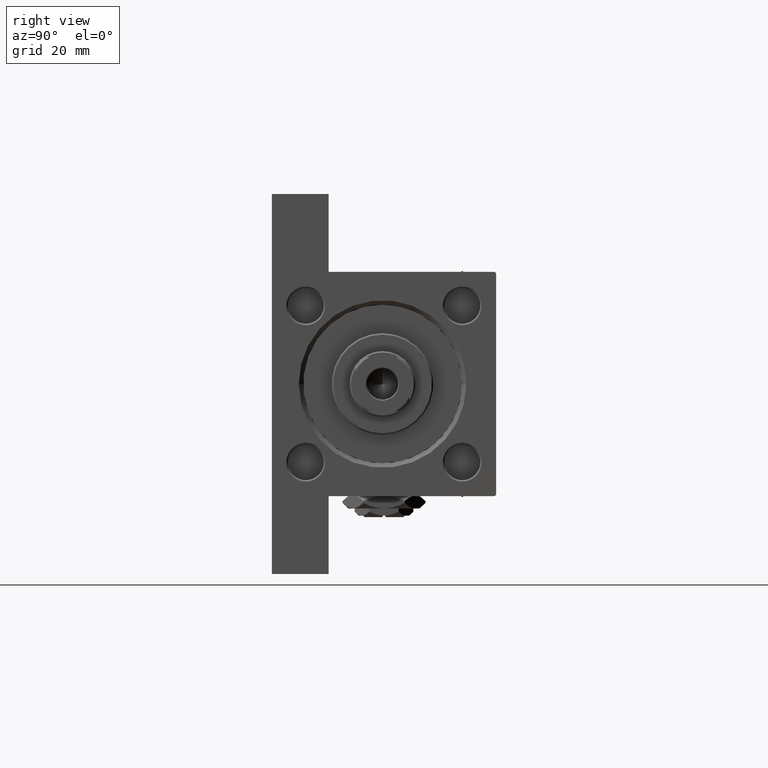
[diagram: clean part render]
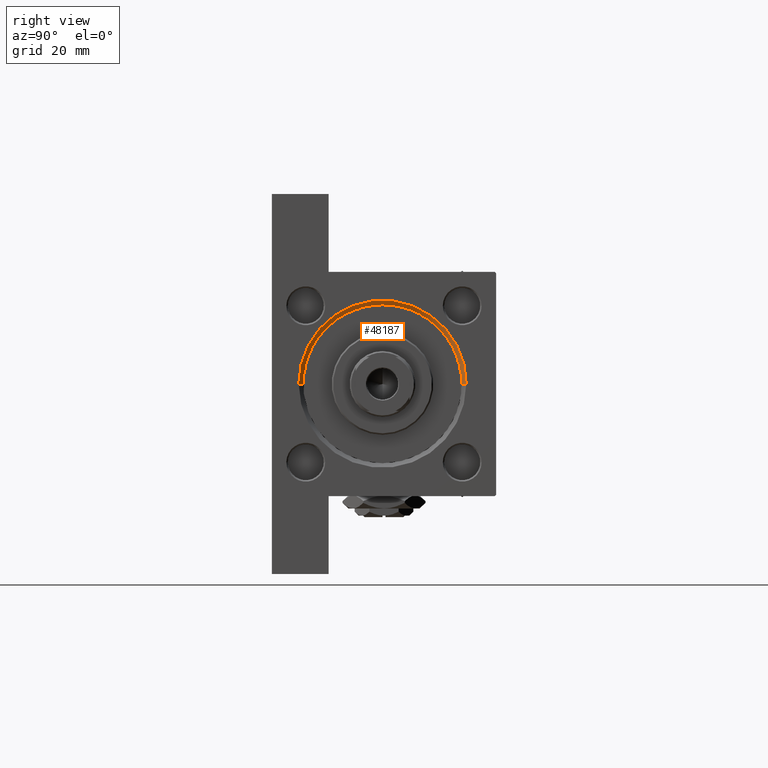
[diagram: same view with one face highlighted and labeled with its STEP entity id]
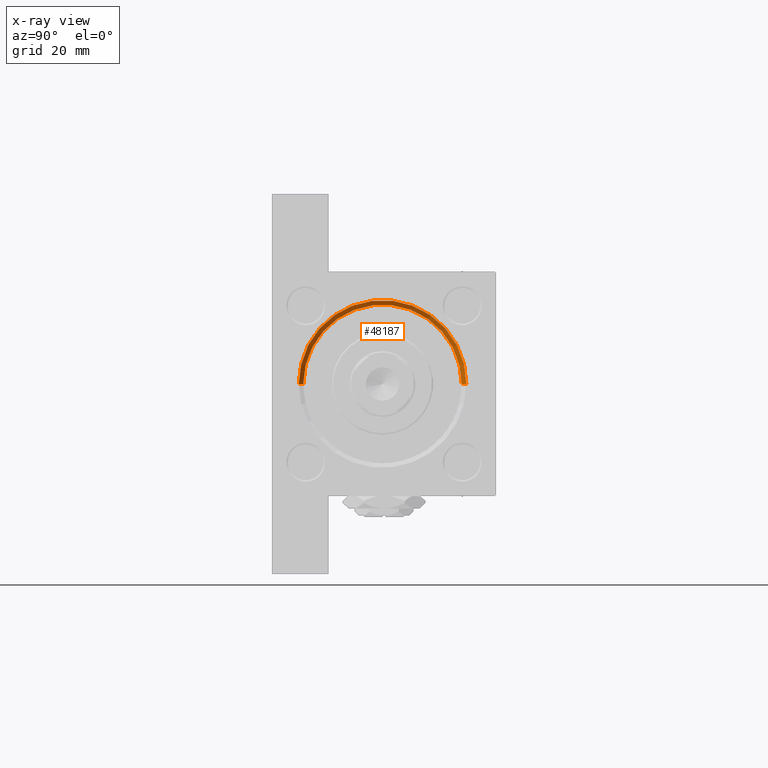
[diagram: x-ray of the same camera — body ghosted, the highlighted face saturated]
A machine part, right view. The second image highlights one B-rep face of the part: STEP entity #48187.
The next image is the same camera in x-ray: the body ghosted, the highlighted face saturated — about 0% of this face is hidden behind the body in this view.
In plain terms, the highlighted conical surface has half-angle 45 deg.
Its self-contained STEP definition (entity closure, byte-faithful):
#404 = CARTESIAN_POINT ( 'NONE',  ( 154.0000000000000000, 0.000000000000000000, -28.49999999999999645 ) ) ;
#463 = DIRECTION ( 'NONE',  ( 0.7071067811865361374, 8.659560562355073374E-17, 0.7071067811865588970 ) ) ;
#2860 = AXIS2_PLACEMENT_3D ( 'NONE', #14663, #49323, #26223 ) ;
#3389 = VECTOR ( 'NONE', #30902, 1000.000000000000114 ) ;
#4721 = LINE ( 'NONE', #39394, #6432 ) ;
#6432 = VECTOR ( 'NONE', #463, 1000.000000000000114 ) ;
#6501 = CIRCLE ( 'NONE', #47414, 26.50000000000000355 ) ;
#7237 = VERTEX_POINT ( 'NONE', #16154 ) ;
#7728 = ORIENTED_EDGE ( 'NONE', *, *, #17783, .T. ) ;
#7817 = CARTESIAN_POINT ( 'NONE',  ( 152.5000000000000568, 0.000000000000000000, -0.5000000000000004441 ) ) ;
#10189 = CARTESIAN_POINT ( 'NONE',  ( 152.5000000000000568, 3.245314017740486554E-15, 26.00000000000000355 ) ) ;
#11433 = CARTESIAN_POINT ( 'NONE',  ( 152.5000000000000568, 0.000000000000000000, -0.5000000000000004441 ) ) ;
#11920 = DIRECTION ( 'NONE',  ( 0.000000000000000000, 0.000000000000000000, -1.000000000000000000 ) ) ;
#12529 = EDGE_LOOP ( 'NONE', ( #25383, #7728, #22681, #47223 ) ) ;
#14663 = CARTESIAN_POINT ( 'NONE',  ( 154.0000000000000000, 0.000000000000000000, -0.5000000000000004441 ) ) ;
#14934 = EDGE_CURVE ( 'NONE', #28372, #7237, #38990, .T. ) ;
#15693 = DIRECTION ( 'NONE',  ( 1.000000000000000000, 0.000000000000000000, 0.000000000000000000 ) ) ;
#16154 = CARTESIAN_POINT ( 'NONE',  ( 154.0000000000000000, 3.429011037612588881E-15, 27.49999999999999645 ) ) ;
#17783 = EDGE_CURVE ( 'NONE', #20664, #7237, #4721, .T. ) ;
#19978 = FACE_OUTER_BOUND ( 'NONE', #12529, .T. ) ;
#20239 = AXIS2_PLACEMENT_3D ( 'NONE', #11433, #15693, #11920 ) ;
#20664 = VERTEX_POINT ( 'NONE', #10189 ) ;
#22681 = ORIENTED_EDGE ( 'NONE', *, *, #14934, .F. ) ;
#23429 = DIRECTION ( 'NONE',  ( 1.000000000000000000, 0.000000000000000000, 0.000000000000000000 ) ) ;
#25298 = VERTEX_POINT ( 'NONE', #32720 ) ;
#25383 = ORIENTED_EDGE ( 'NONE', *, *, #46661, .F. ) ;
#26223 = DIRECTION ( 'NONE',  ( 0.000000000000000000, 0.000000000000000000, 1.000000000000000000 ) ) ;
#26543 = EDGE_CURVE ( 'NONE', #25298, #28372, #49243, .T. ) ;
#28372 = VERTEX_POINT ( 'NONE', #404 ) ;
#30902 = DIRECTION ( 'NONE',  ( 0.7071067811865361374, 0.000000000000000000, -0.7071067811865588970 ) ) ;
#32720 = CARTESIAN_POINT ( 'NONE',  ( 152.5000000000000568, 0.000000000000000000, -27.00000000000000355 ) ) ;
#38990 = CIRCLE ( 'NONE', #2860, 27.99999999999999645 ) ;
#39394 = CARTESIAN_POINT ( 'NONE',  ( 152.5000000000000568, 3.245314017740486554E-15, 26.00000000000000355 ) ) ;
#41752 = DIRECTION ( 'NONE',  ( 0.000000000000000000, 0.000000000000000000, 1.000000000000000000 ) ) ;
#44255 = CONICAL_SURFACE ( 'NONE', #20239, 26.50000000000000355, 0.7853981633974644883 ) ;
#45458 = CARTESIAN_POINT ( 'NONE',  ( 152.5000000000000568, 0.000000000000000000, -27.00000000000000355 ) ) ;
#46661 = EDGE_CURVE ( 'NONE', #20664, #25298, #6501, .T. ) ;
#47223 = ORIENTED_EDGE ( 'NONE', *, *, #26543, .F. ) ;
#47414 = AXIS2_PLACEMENT_3D ( 'NONE', #7817, #23429, #41752 ) ;
#48187 = ADVANCED_FACE ( 'NONE', ( #19978 ), #44255, .F. ) ;
#49243 = LINE ( 'NONE', #45458, #3389 ) ;
#49323 = DIRECTION ( 'NONE',  ( -1.000000000000000000, -0.000000000000000000, 0.000000000000000000 ) ) ;